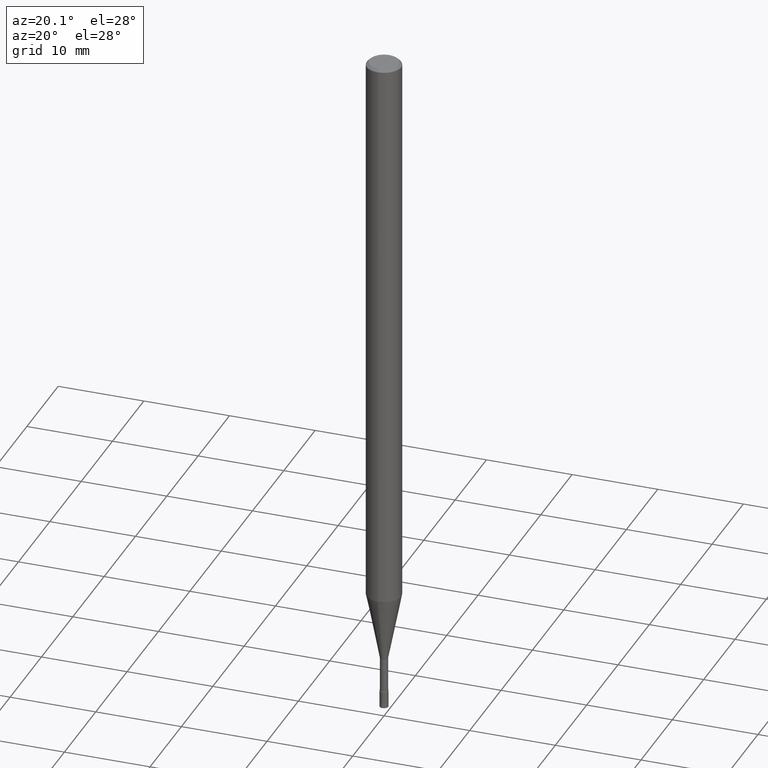
[diagram: clean part render]
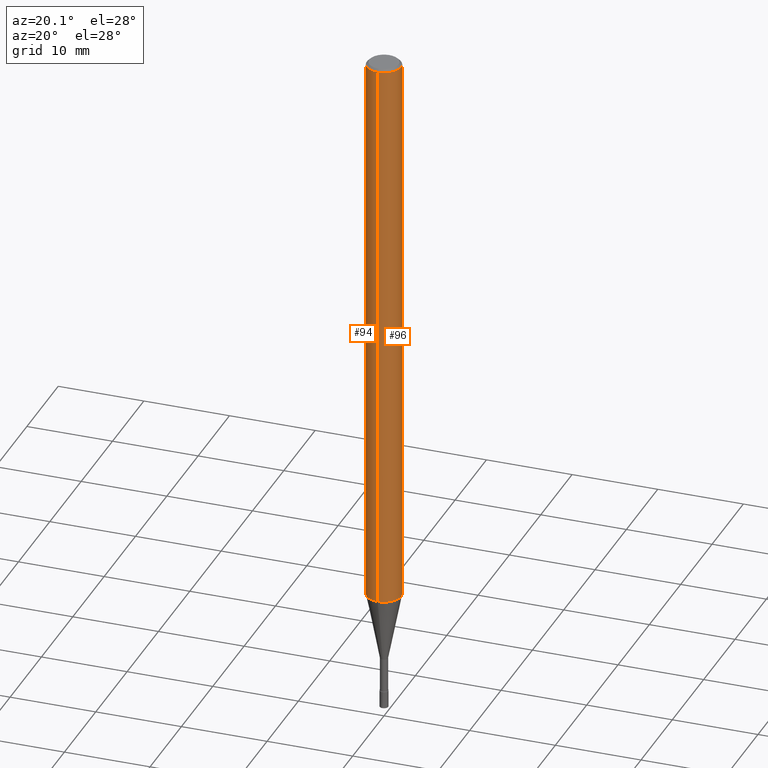
[diagram: same view with one multi-face feature highlighted, each face labeled with its STEP entity id]
A machine part, auxiliary view. The highlighted faces form ONE feature: a constant-radius fillet chain: 2 tangent blend faces with common blend radius 2 mm. The faces share edges in the B-rep.
Their STEP definitions:
[1] entity #96 (Cylinder):
#96=ADVANCED_FACE('',(#234),#235,.T.);
#102=EDGE_CURVE('',#176,#206,#242,.T.);
#118=EDGE_CURVE('',#154,#160,#259,.T.);
#154=VERTEX_POINT('',#299);
#160=VERTEX_POINT('',#306);
#176=VERTEX_POINT('',#323);
#184=EDGE_CURVE('',#160,#206,#332,.T.);
#190=EDGE_CURVE('',#176,#154,#341,.T.);
#206=VERTEX_POINT('',#359);
#234=FACE_OUTER_BOUND('',#380,.T.);
#235=CYLINDRICAL_SURFACE('',#381,2.0);
#242=CIRCLE('',#390,2.0);
#259=CIRCLE('',#414,2.0);
#299=CARTESIAN_POINT('',(0.0,2.0,-66.026));
#306=CARTESIAN_POINT('',(2.44921270764475E-016,-2.0,-66.026));
#323=CARTESIAN_POINT('',(0.0,2.0,-0.299999999999997));
#332=LINE('',#506,#507);
#341=LINE('',#517,#518);
#359=CARTESIAN_POINT('',(2.44921270764475E-016,-2.0,-0.299999999999997));
#380=EDGE_LOOP('',(#554,#555,#556,#557));
#381=AXIS2_PLACEMENT_3D('',#558,#559,#560);
#390=AXIS2_PLACEMENT_3D('',#572,#573,#574);
#414=AXIS2_PLACEMENT_3D('',#589,#590,#591);
#506=CARTESIAN_POINT('',(2.44921270764475E-016,-2.0,-33.163));
#507=VECTOR('',#678,1.0);
#517=CARTESIAN_POINT('',(-2.44921270764475E-016,2.0,-33.163));
#518=VECTOR('',#695,1.0);
#554=ORIENTED_EDGE('',*,*,#190,.F.);
#555=ORIENTED_EDGE('',*,*,#102,.T.);
#556=ORIENTED_EDGE('',*,*,#184,.F.);
#557=ORIENTED_EDGE('',*,*,#118,.F.);
#558=CARTESIAN_POINT('',(0.0,0.0,-33.163));
#559=DIRECTION('',(-0.0,-0.0,1.0));
#560=DIRECTION('',(0.0,1.0,0.0));
#572=CARTESIAN_POINT('',(0.0,0.0,-0.299999999999997));
#573=DIRECTION('',(0.0,0.0,-1.0));
#574=DIRECTION('',(0.0,1.0,0.0));
#589=CARTESIAN_POINT('',(0.0,0.0,-66.026));
#590=DIRECTION('',(0.0,0.0,-1.0));
#591=DIRECTION('',(0.0,1.0,0.0));
#678=DIRECTION('',(-0.0,-0.0,1.0));
#695=DIRECTION('',(0.0,0.0,-1.0));
[2] entity #94 (Cylinder):
#92=EDGE_CURVE('',#206,#176,#229,.T.);
#94=ADVANCED_FACE('',(#231),#232,.T.);
#154=VERTEX_POINT('',#299);
#160=VERTEX_POINT('',#306);
#164=EDGE_CURVE('',#160,#154,#310,.T.);
#176=VERTEX_POINT('',#323);
#184=EDGE_CURVE('',#160,#206,#332,.T.);
#190=EDGE_CURVE('',#176,#154,#341,.T.);
#206=VERTEX_POINT('',#359);
#229=CIRCLE('',#375,2.0);
#231=FACE_OUTER_BOUND('',#377,.T.);
#232=CYLINDRICAL_SURFACE('',#378,2.0);
#299=CARTESIAN_POINT('',(0.0,2.0,-66.026));
#306=CARTESIAN_POINT('',(2.44921270764475E-016,-2.0,-66.026));
#310=CIRCLE('',#477,2.0);
#323=CARTESIAN_POINT('',(0.0,2.0,-0.299999999999997));
#332=LINE('',#506,#507);
#341=LINE('',#517,#518);
#359=CARTESIAN_POINT('',(2.44921270764475E-016,-2.0,-0.299999999999997));
#375=AXIS2_PLACEMENT_3D('',#542,#543,#544);
#377=EDGE_LOOP('',(#546,#547,#548,#549));
#378=AXIS2_PLACEMENT_3D('',#550,#551,#552);
#477=AXIS2_PLACEMENT_3D('',#651,#652,#653);
#506=CARTESIAN_POINT('',(2.44921270764475E-016,-2.0,-33.163));
#507=VECTOR('',#678,1.0);
#517=CARTESIAN_POINT('',(-2.44921270764475E-016,2.0,-33.163));
#518=VECTOR('',#695,1.0);
#542=CARTESIAN_POINT('',(0.0,0.0,-0.299999999999997));
#543=DIRECTION('',(0.0,0.0,-1.0));
#544=DIRECTION('',(0.0,1.0,0.0));
#546=ORIENTED_EDGE('',*,*,#190,.T.);
#547=ORIENTED_EDGE('',*,*,#164,.F.);
#548=ORIENTED_EDGE('',*,*,#184,.T.);
#549=ORIENTED_EDGE('',*,*,#92,.T.);
#550=CARTESIAN_POINT('',(0.0,0.0,-33.163));
#551=DIRECTION('',(-0.0,-0.0,1.0));
#552=DIRECTION('',(0.0,1.0,0.0));
#651=CARTESIAN_POINT('',(0.0,0.0,-66.026));
#652=DIRECTION('',(0.0,0.0,-1.0));
#653=DIRECTION('',(0.0,1.0,0.0));
#678=DIRECTION('',(-0.0,-0.0,1.0));
#695=DIRECTION('',(0.0,0.0,-1.0));